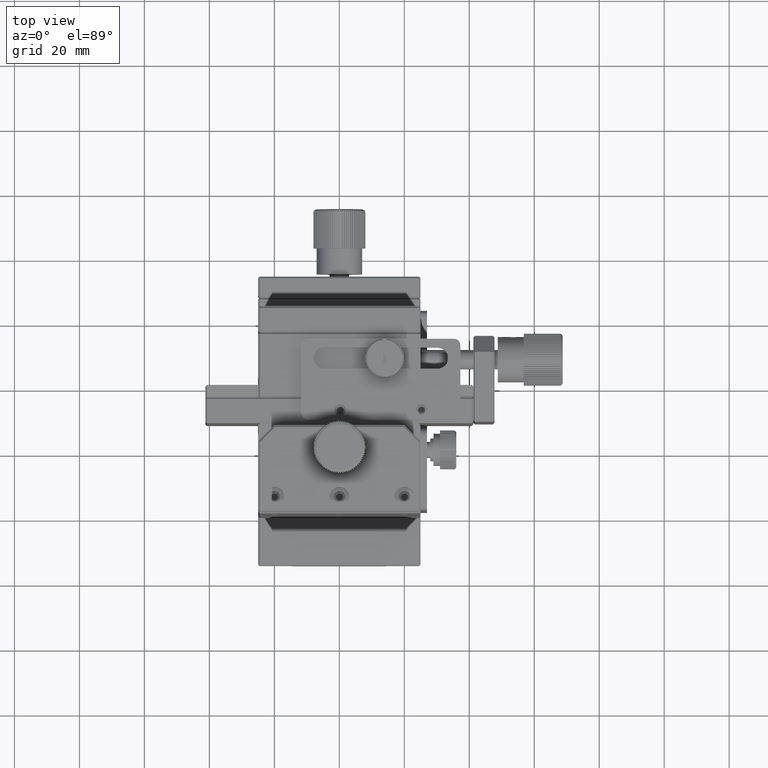
[diagram: clean part render]
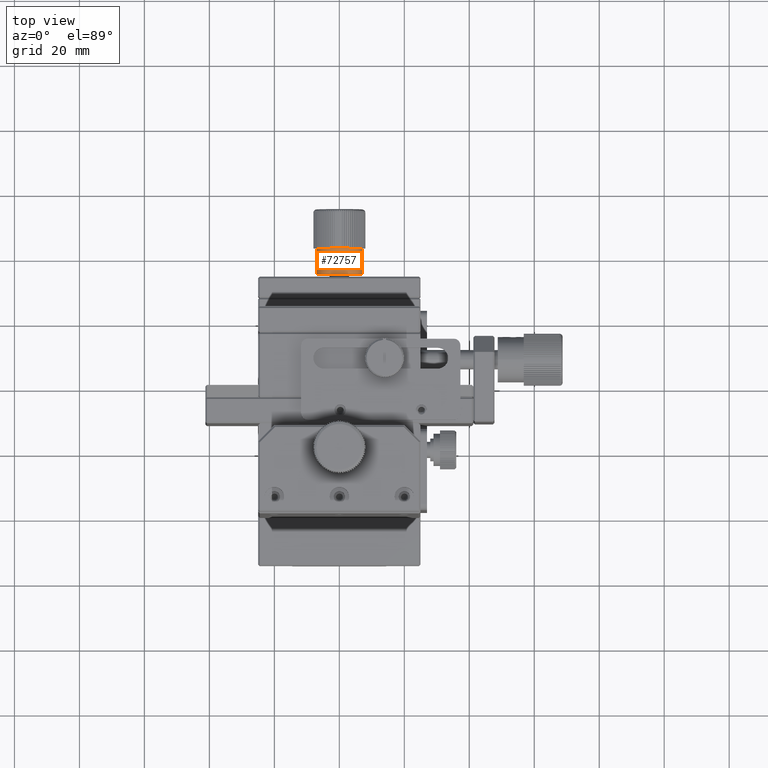
[diagram: same view with one face highlighted and labeled with its STEP entity id]
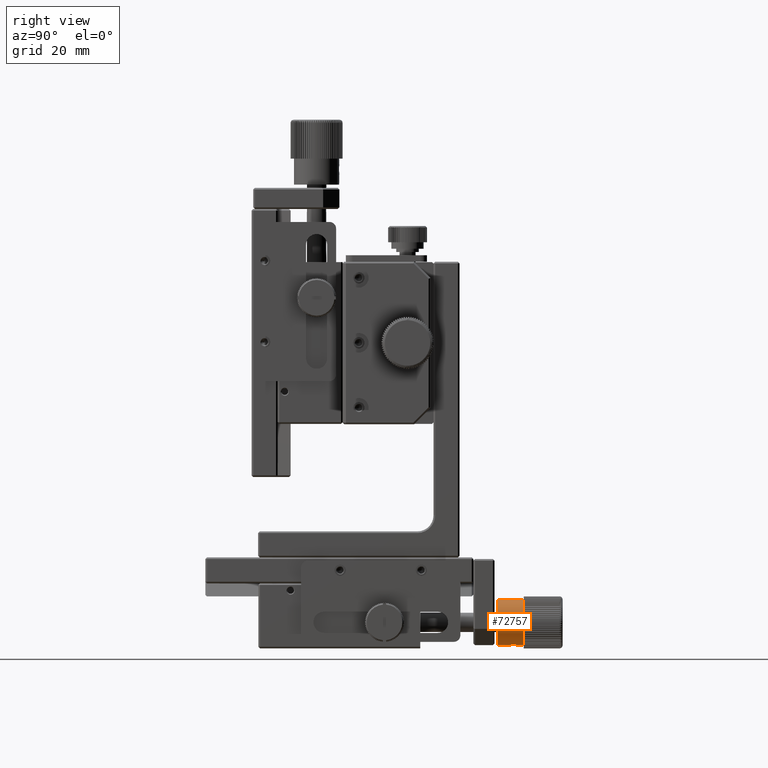
[diagram: same view with one face highlighted and labeled with its STEP entity id]
A machine part, top view. The second image highlights one B-rep face of the part: STEP entity #72757.
A second angle (right view) of the same face is appended — the face is thin or edge-on in the first view.
In plain terms, the highlighted cylindrical surface (bore or boss wall) has radius 7 mm, axis along (0, -1, 0).
Its self-contained STEP definition (entity closure, byte-faithful):
#805 = CARTESIAN_POINT ( 'NONE',  ( -0.9944791022833753269, 79.72831950696929937, -51.67914896082349685 ) ) ;
#1198 = CARTESIAN_POINT ( 'NONE',  ( 0.08051030082501028917, 79.23992282258294040, -51.75001378167556254 ) ) ;
#1557 = B_SPLINE_CURVE_WITH_KNOTS ( 'NONE', 3,
 ( #4472, #72140, #29346, #72540, #60730, #79877, #66042, #4076, #78676, #54207, #79073, #23228, #47691, #35877, #16735, #41590, #66449, #42393, #48106, #42001, #67235, #11005, #48514, #54616, #11402, #79472, #17530, #805, #69651, #6090, #37100, #63150, #55819, #1198, #26040, #30945, #13826, #74161, #30557, #61937 ),
 .UNSPECIFIED., .T., .F.,
 ( 4, 2, 2, 2, 2, 2, 2, 2, 2, 2, 2, 2, 2, 2, 2, 2, 2, 2, 2, 4 ),
 ( 0.000000000000000000, 0.0004927095873740592507, 0.0009854191747481185013, 0.001478128762122177644, 0.001970838349496237003, 0.002463547936870296579, 0.002709902730557327017, 0.002956257524244357022, 0.003448967111618417899, 0.003941676698992478342, 0.004434386286366538352, 0.004927095873740599229, 0.005419805461114659238, 0.005666160254801709192, 0.005912515048488758279, 0.006405224635862887678, 0.006897934223237017076, 0.007144289016924081775, 0.007390643810611146475, 0.007883353397985293221 ),
 .UNSPECIFIED. ) ;
#4076 = CARTESIAN_POINT ( 'NONE',  ( 1.092167580783390379, 81.11961336283349056, -51.66456427167494070 ) ) ;
#4250 = DIRECTION ( 'NONE',  ( 0.000000000000000000, -1.000000000000000000, 0.000000000000000000 ) ) ;
#4472 = CARTESIAN_POINT ( 'NONE',  ( 0.8830851694333048396, 79.60531893683263149, -51.69407377434362161 ) ) ;
#6090 = CARTESIAN_POINT ( 'NONE',  ( -0.7691526089402676014, 79.49128900872615588, -51.70858230145430667 ) ) ;
#8354 = EDGE_CURVE ( 'NONE', #16183, #16183, #1557, .T. ) ;
#9917 = CARTESIAN_POINT ( 'NONE',  ( -7.000000000000000000, 83.75000000000000000, -44.75000000000000000 ) ) ;
#10361 = CYLINDRICAL_SURFACE ( 'NONE', #57435, 7.000000000000000000 ) ;
#11005 = CARTESIAN_POINT ( 'NONE',  ( -1.217117297916370244, 80.81852778388930858, -51.64366982658981442 ) ) ;
#11402 = CARTESIAN_POINT ( 'NONE',  ( -1.217503971091506321, 80.16280605683725469, -51.64360095054528443 ) ) ;
#13826 = CARTESIAN_POINT ( 'NONE',  ( 0.4019274383067258927, 79.30354912672439127, -51.73886346909151257 ) ) ;
#14022 = AXIS2_PLACEMENT_3D ( 'NONE', #64650, #52423, #71126 ) ;
#14944 = ORIENTED_EDGE ( 'NONE', *, *, #67497, .T. ) ;
#16183 = VERTEX_POINT ( 'NONE', #16584 ) ;
#16584 = CARTESIAN_POINT ( 'NONE',  ( 0.8830851694333029522, 79.60531893683261728, -51.69407377434362161 ) ) ;
#16735 = CARTESIAN_POINT ( 'NONE',  ( 0.08158692677428316942, 81.74000986723959272, -51.75000176200705226 ) ) ;
#17530 = CARTESIAN_POINT ( 'NONE',  ( -1.084984527849683245, 79.86393735723287080, -51.66555511730520323 ) ) ;
#18965 = EDGE_CURVE ( 'NONE', #54334, #54334, #36190, .T. ) ;
#21858 = CARTESIAN_POINT ( 'NONE',  ( 0.000000000000000000, 75.75000000000000000, -44.75000000000000000 ) ) ;
#22596 = FACE_OUTER_BOUND ( 'NONE', #65197, .T. ) ;
#23228 = CARTESIAN_POINT ( 'NONE',  ( 0.4029623904258764489, 81.67611054479671395, -51.73880511120180614 ) ) ;
#26040 = CARTESIAN_POINT ( 'NONE',  ( 0.1635214313906284689, 79.24804568927092419, -51.74855013266675030 ) ) ;
#26769 = ORIENTED_EDGE ( 'NONE', *, *, #8354, .T. ) ;
#29346 = CARTESIAN_POINT ( 'NONE',  ( 1.092336944628064854, 79.86084402640383928, -51.66453543532187354 ) ) ;
#30557 = CARTESIAN_POINT ( 'NONE',  ( 0.7664339320555749735, 79.48887812893799776, -51.70890843495809719 ) ) ;
#30945 = CARTESIAN_POINT ( 'NONE',  ( 0.3239633941399608918, 79.27994318822625530, -51.74296009835826027 ) ) ;
#34504 = DIRECTION ( 'NONE',  ( -1.000000000000000000, 0.000000000000000000, 0.000000000000000000 ) ) ;
#35877 = CARTESIAN_POINT ( 'NONE',  ( 0.1646121628713305696, 81.73180790824672215, -51.74852401771058652 ) ) ;
#36190 = CIRCLE ( 'NONE', #14022, 7.000000000000000000 ) ;
#37100 = CARTESIAN_POINT ( 'NONE',  ( -0.6300980879307023219, 79.39821044535385397, -51.72321335016498267 ) ) ;
#40623 = DIRECTION ( 'NONE',  ( -0.000000000000000000, 1.000000000000000000, -0.000000000000000000 ) ) ;
#41590 = CARTESIAN_POINT ( 'NONE',  ( -0.1636269644988748717, 81.73998023814623082, -51.74999647109757461 ) ) ;
#42001 = CARTESIAN_POINT ( 'NONE',  ( -0.9984746392031058626, 81.25942048312660404, -51.67939443660183940 ) ) ;
#42393 = CARTESIAN_POINT ( 'NONE',  ( -0.6290513456894304412, 81.58237927004294932, -51.72330717136193101 ) ) ;
#43397 = EDGE_LOOP ( 'NONE', ( #14944 ) ) ;
#47184 = ORIENTED_EDGE ( 'NONE', *, *, #18965, .T. ) ;
#47691 = CARTESIAN_POINT ( 'NONE',  ( 0.3249582991439453061, 81.69978764622840117, -51.74291339103057652 ) ) ;
#48106 = CARTESIAN_POINT ( 'NONE',  ( -0.7683049947623500353, 81.48933323771892390, -51.70867561380491395 ) ) ;
#48514 = CARTESIAN_POINT ( 'NONE',  ( -1.249925515963564715, 80.65596703438306747, -51.63750217497276651 ) ) ;
#52423 = DIRECTION ( 'NONE',  ( 0.000000000000000000, -1.000000000000000000, 0.000000000000000000 ) ) ;
#53575 = FACE_BOUND ( 'NONE', #57643, .T. ) ;
#54207 = CARTESIAN_POINT ( 'NONE',  ( 0.7679604095546910258, 81.48987126844887996, -51.70873199156640965 ) ) ;
#54334 = VERTEX_POINT ( 'NONE', #9917 ) ;
#54616 = CARTESIAN_POINT ( 'NONE',  ( -1.250074231418384141, 80.32515683847238108, -51.63747518483043564 ) ) ;
#55819 = CARTESIAN_POINT ( 'NONE',  ( -0.1645890013894583670, 79.24015605263144835, -51.74997213347081981 ) ) ;
#56914 = CIRCLE ( 'NONE', #60815, 7.000000000000000000 ) ;
#57435 = AXIS2_PLACEMENT_3D ( 'NONE', #60099, #4250, #67795 ) ;
#57643 = EDGE_LOOP ( 'NONE', ( #26769 ) ) ;
#60099 = CARTESIAN_POINT ( 'NONE',  ( 0.000000000000000000, 7.250000000000000888, -44.75000000000000000 ) ) ;
#60730 = CARTESIAN_POINT ( 'NONE',  ( 1.249987550549465531, 80.32663357239772495, -51.63749091641007993 ) ) ;
#60815 = AXIS2_PLACEMENT_3D ( 'NONE', #21858, #40623, #34504 ) ;
#61937 = CARTESIAN_POINT ( 'NONE',  ( 0.8830851694333048396, 79.60531893683263149, -51.69407377434362161 ) ) ;
#63150 = CARTESIAN_POINT ( 'NONE',  ( -0.3292905395243315159, 79.27320265753570538, -51.74387558996532022 ) ) ;
#64280 = CARTESIAN_POINT ( 'NONE',  ( -7.000000000000000000, 75.75000000000000000, -44.75000000000000000 ) ) ;
#64650 = CARTESIAN_POINT ( 'NONE',  ( 0.000000000000000000, 83.75000000000000000, -44.75000000000000000 ) ) ;
#65197 = EDGE_LOOP ( 'NONE', ( #47184 ) ) ;
#66042 = CARTESIAN_POINT ( 'NONE',  ( 1.217378486443285501, 80.81746393987396004, -51.64362159625711257 ) ) ;
#66449 = CARTESIAN_POINT ( 'NONE',  ( -0.3283038359808044260, 81.70705162438306957, -51.74392129587985067 ) ) ;
#67235 = CARTESIAN_POINT ( 'NONE',  ( -1.091453504622260429, 81.12089957118567440, -51.66467912792560924 ) ) ;
#67497 = EDGE_CURVE ( 'NONE', #76493, #76493, #56914, .T. ) ;
#67795 = DIRECTION ( 'NONE',  ( -1.000000000000000000, 0.000000000000000000, 0.000000000000000000 ) ) ;
#69651 = CARTESIAN_POINT ( 'NONE',  ( -0.9418060818616756924, 79.66408768676626551, -51.68659622218684291 ) ) ;
#71126 = DIRECTION ( 'NONE',  ( -1.000000000000000000, 0.000000000000000000, 0.000000000000000000 ) ) ;
#72140 = CARTESIAN_POINT ( 'NONE',  ( 0.9997364068110142776, 79.72175974472725102, -51.67923911372916024 ) ) ;
#72540 = CARTESIAN_POINT ( 'NONE',  ( 1.217099635037288685, 80.16181450656179663, -51.64366874496541726 ) ) ;
#72757 = ADVANCED_FACE ( 'NONE', ( #22596, #53575, #78445 ), #10361, .T. ) ;
#74161 = CARTESIAN_POINT ( 'NONE',  ( 0.6290463807910415817, 79.39745891964892621, -51.72333017086354090 ) ) ;
#76493 = VERTEX_POINT ( 'NONE', #64280 ) ;
#78445 = FACE_OUTER_BOUND ( 'NONE', #43397, .T. ) ;
#78676 = CARTESIAN_POINT ( 'NONE',  ( 1.000299324967114156, 81.25740276555627872, -51.67914968676271315 ) ) ;
#79073 = CARTESIAN_POINT ( 'NONE',  ( 0.6304199922872881778, 81.58179589833783041, -51.72321109067809175 ) ) ;
#79472 = CARTESIAN_POINT ( 'NONE',  ( -1.123352536867841422, 79.93565621954500955, -51.65934812946620980 ) ) ;
#79877 = CARTESIAN_POINT ( 'NONE',  ( 1.250012442187165673, 80.65317585781440357, -51.63748639886405556 ) ) ;